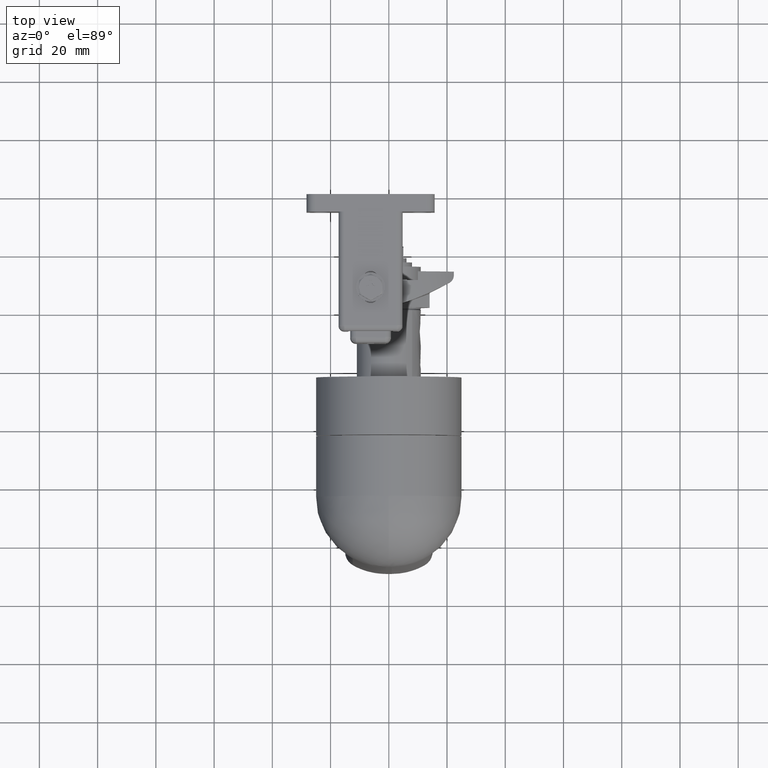
[diagram: clean part render]
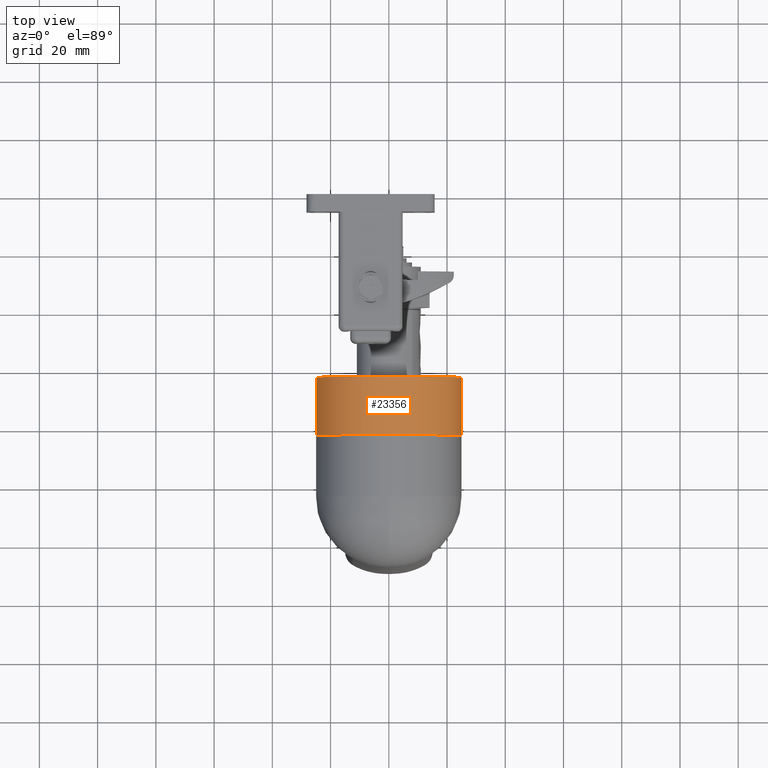
[diagram: same view with one face highlighted and labeled with its STEP entity id]
A machine part, top view. The second image highlights one B-rep face of the part: STEP entity #23356.
In plain terms, the highlighted face is a freeform B-spline surface patch.
Its self-contained STEP definition (entity closure, byte-faithful):
#23193=CARTESIAN_POINT('',(-24.953370912088499,-23.999999999648178,1.526197932689840));
#23194=VERTEX_POINT('',#23193);
#23212=CARTESIAN_POINT('',(24.953370911811561,-23.999999999648189,-1.526197932689840));
#23213=VERTEX_POINT('',#23212);
#23227=CARTESIAN_POINT('',(24.953370900341600,-43.999999999647798,-1.526198119796730));
#23228=VERTEX_POINT('',#23227);
#23229=CARTESIAN_POINT('',(24.953370911811561,-23.999999999648189,-1.526197932689840));
#23230=CARTESIAN_POINT('',(24.953370900341600,-43.999999999647798,-1.526198119796730));
#23231=QUASI_UNIFORM_CURVE('',1,(#23229,#23230),.UNSPECIFIED.,.F.,.U.);
#23232=EDGE_CURVE('',#23213,#23228,#23231,.T.);
#23249=CARTESIAN_POINT('',(-24.953370900618541,-43.999999999647798,1.526198119796725));
#23250=VERTEX_POINT('',#23249);
#23266=CARTESIAN_POINT('',(-24.953370912088499,-23.999999999648178,1.526197932689840));
#23267=CARTESIAN_POINT('',(-24.953370900618541,-43.999999999647798,1.526198119796725));
#23268=QUASI_UNIFORM_CURVE('',1,(#23266,#23267),.UNSPECIFIED.,.F.,.U.);
#23269=EDGE_CURVE('',#23194,#23250,#23268,.T.);
#23274=CARTESIAN_POINT('',(24.953369960381998,-23.499999999648050,-1.526213488369822));
#23275=CARTESIAN_POINT('',(26.479583448751821,-23.499999999648061,23.427156472150649));
#23276=CARTESIAN_POINT('',(1.526213488231352,-23.499999999648050,24.953369960520469));
#23277=CARTESIAN_POINT('',(-23.427156472289113,-23.499999999648061,26.479583448890285));
#23278=CARTESIAN_POINT('',(-24.953369960658939,-23.499999999648050,1.526213488369822));
#23279=CARTESIAN_POINT('',(24.953369960381998,-44.512499999647801,-1.526213488369822));
#23280=CARTESIAN_POINT('',(26.479583448751821,-44.512499999647808,23.427156472150649));
#23281=CARTESIAN_POINT('',(1.526213488231352,-44.512499999647801,24.953369960520469));
#23282=CARTESIAN_POINT('',(-23.427156472289113,-44.512499999647808,26.479583448890285));
#23283=CARTESIAN_POINT('',(-24.953369960658939,-44.512499999647801,1.526213488369822));
#23291=(BOUNDED_SURFACE()B_SPLINE_SURFACE(2,1,((#23274,#23279),(#23275,#23280),(#23276,#23281),(#23277,#23282),(#23278,#23283)),.UNSPECIFIED.,.F.,.F.,.U.)B_SPLINE_SURFACE_WITH_KNOTS((3,2,3),(2,2),(0.0,41.421356237265996,82.842712474532007),(0.0,21.012499999999751),.UNSPECIFIED.)GEOMETRIC_REPRESENTATION_ITEM()RATIONAL_B_SPLINE_SURFACE(((1.0,1.0),(0.707106781186548,0.707106781186548),(1.0,1.0),(0.707106781186548,0.707106781186548),(1.0,1.0)))REPRESENTATION_ITEM('')SURFACE());
#23292=CARTESIAN_POINT('',(-1.384706E-010,-23.999999999648050,25.0));
#23293=VERTEX_POINT('',#23292);
#23294=CARTESIAN_POINT('',(-1.384706E-010,-23.999999999648050,25.0));
#23295=CARTESIAN_POINT('',(-23.517666360840209,-23.999999999648121,24.999999999999449));
#23296=CARTESIAN_POINT('',(-24.953370912088499,-23.999999999648182,1.526197932689841));
#23304=(BOUNDED_CURVE()B_SPLINE_CURVE(2,(#23294,#23295,#23296),.UNSPECIFIED.,.F.,.U.)B_SPLINE_CURVE_WITH_KNOTS((3,3),(0.0,0.239333069805917),.UNSPECIFIED.)CURVE()GEOMETRIC_REPRESENTATION_ITEM()RATIONAL_B_SPLINE_CURVE((1.0,0.719603867264161,0.976072272203327))REPRESENTATION_ITEM(''));
#23305=EDGE_CURVE('',#23293,#23194,#23304,.T.);
#23306=ORIENTED_EDGE('',*,*,#23305,.T.);
#23307=ORIENTED_EDGE('',*,*,#23269,.T.);
#23308=CARTESIAN_POINT('',(-1.384706E-010,-43.999999999647798,24.999999999947601));
#23309=VERTEX_POINT('',#23308);
#23310=CARTESIAN_POINT('',(-1.384706E-010,-43.999999999647798,24.999999999947601));
#23311=CARTESIAN_POINT('',(-23.517666184131429,-43.999999999647791,24.999999999947850));
#23312=CARTESIAN_POINT('',(-24.953370900618534,-43.999999999647805,1.526198119796724));
#23320=(BOUNDED_CURVE()B_SPLINE_CURVE(2,(#23310,#23311,#23312),.UNSPECIFIED.,.F.,.U.)B_SPLINE_CURVE_WITH_KNOTS((3,3),(0.0,0.239333068512105),.UNSPECIFIED.)CURVE()GEOMETRIC_REPRESENTATION_ITEM()RATIONAL_B_SPLINE_CURVE((1.0,0.719603868779957,0.976072269430439))REPRESENTATION_ITEM(''));
#23321=EDGE_CURVE('',#23309,#23250,#23320,.T.);
#23322=ORIENTED_EDGE('',*,*,#23321,.F.);
#23323=CARTESIAN_POINT('',(24.953370900341593,-43.999999999647805,-1.526198119796730));
#23324=CARTESIAN_POINT('',(24.999999999817327,-43.999999999647805,-0.763811376631846));
#23325=CARTESIAN_POINT('',(24.999999999817199,-43.999999999647798,-4.895290E-013));
#23326=CARTESIAN_POINT('',(24.999999999813056,-43.999999999647798,24.999999999947363));
#23327=CARTESIAN_POINT('',(-1.384706E-010,-43.999999999647798,24.999999999947601));
#23335=(BOUNDED_CURVE()B_SPLINE_CURVE(2,(#23323,#23324,#23325,#23326,#23327),.UNSPECIFIED.,.F.,.U.)B_SPLINE_CURVE_WITH_KNOTS((3,2,3),(0.739333068512104,0.750000000000000,1.0),.UNSPECIFIED.)CURVE()GEOMETRIC_REPRESENTATION_ITEM()RATIONAL_B_SPLINE_CURVE((0.976072269430439,0.987502912406591,1.0,0.707106781186548,1.0))REPRESENTATION_ITEM(''));
#23336=EDGE_CURVE('',#23228,#23309,#23335,.T.);
#23337=ORIENTED_EDGE('',*,*,#23336,.F.);
#23338=ORIENTED_EDGE('',*,*,#23232,.F.);
#23339=CARTESIAN_POINT('',(24.953370911811565,-23.999999999648182,-1.526197932689841));
#23340=CARTESIAN_POINT('',(24.999999999843837,-23.999999999648189,-0.763811282815310));
#23341=CARTESIAN_POINT('',(24.999999999844110,-23.999999999648189,1.071922E-012));
#23342=CARTESIAN_POINT('',(24.999999999853099,-23.999999999648118,25.000000000000515));
#23343=CARTESIAN_POINT('',(-1.384706E-010,-23.999999999648050,25.0));
#23351=(BOUNDED_CURVE()B_SPLINE_CURVE(2,(#23339,#23340,#23341,#23342,#23343),.UNSPECIFIED.,.F.,.U.)B_SPLINE_CURVE_WITH_KNOTS((3,2,3),(0.739333069805917,0.750000000000000,1.0),.UNSPECIFIED.)CURVE()GEOMETRIC_REPRESENTATION_ITEM()RATIONAL_B_SPLINE_CURVE((0.976072272203327,0.987502913922386,1.0,0.707106781186547,1.0))REPRESENTATION_ITEM(''));
#23352=EDGE_CURVE('',#23213,#23293,#23351,.T.);
#23353=ORIENTED_EDGE('',*,*,#23352,.T.);
#23354=EDGE_LOOP('',(#23306,#23307,#23322,#23337,#23338,#23353));
#23355=FACE_OUTER_BOUND('',#23354,.T.);
#23356=ADVANCED_FACE('',(#23355),#23291,.T.);